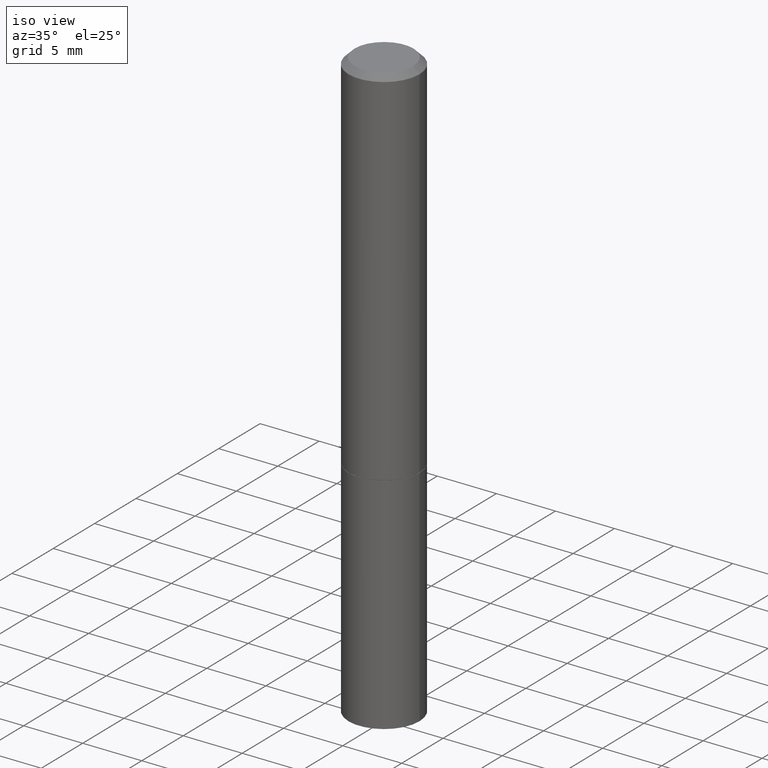
[diagram: clean part render]
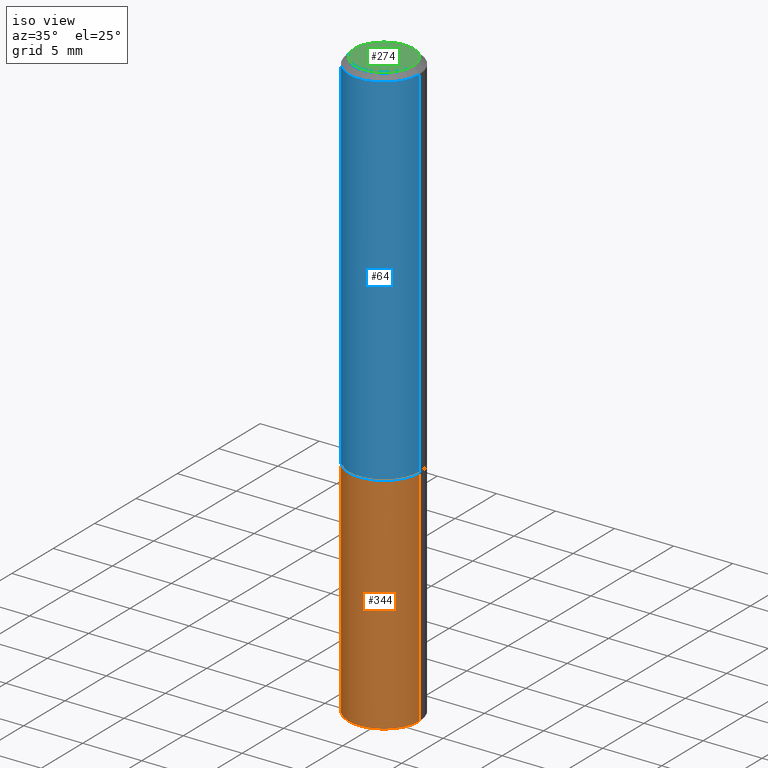
[diagram: same view with three faces highlighted in distinct colors, each labeled with its STEP entity id]
A machine part, iso view with three faces highlighted in distinct colors.
Their STEP definitions:

[orange] entity #344 — the highlighted cylindrical surface (partial cylindrical patch) has radius 2.9997 mm, axis along (-0, 0, 1).
#1 = ORIENTED_EDGE ( 'NONE', *, *, #267, .F. ) ;
#12 = LINE ( 'NONE', #241, #104 ) ;
#16 = DIRECTION ( 'NONE',  ( -2.445468806185136877E-29, 3.491481338843145188E-15, 1.000000000000000000 ) ) ;
#17 = CARTESIAN_POINT ( 'NONE',  ( -0.1180999999999999966, -4.728016023852716776E-15, -1.220499999999999918 ) ) ;
#25 = CARTESIAN_POINT ( 'NONE',  ( 0.1180999999999999966, -7.697668907747479970E-15, -1.968500000000000139 ) ) ;
#27 = CYLINDRICAL_SURFACE ( 'NONE', #230, 0.1180999999999999966 ) ;
#29 = FACE_OUTER_BOUND ( 'NONE', #69, .T. ) ;
#33 = EDGE_CURVE ( 'NONE', #287, #190, #247, .T. ) ;
#46 = ORIENTED_EDGE ( 'NONE', *, *, #254, .F. ) ;
#53 = CARTESIAN_POINT ( 'NONE',  ( 2.984694677948959472E-29, -4.261352974058059028E-15, -1.220499999999999918 ) ) ;
#68 = CARTESIAN_POINT ( 'NONE',  ( 0.1180999999999999966, -5.086040866292807290E-15, -1.220499999999999918 ) ) ;
#69 = EDGE_LOOP ( 'NONE', ( #1, #166, #223, #46 ) ) ;
#71 = DIRECTION ( 'NONE',  ( 1.000000000000000000, -6.982962677686265133E-15, 0.000000000000000000 ) ) ;
#92 = DIRECTION ( 'NONE',  ( -2.445468806185136877E-29, 3.491481338843145188E-15, 1.000000000000000000 ) ) ;
#104 = VECTOR ( 'NONE', #92, 39.37007874015748143 ) ;
#121 = CARTESIAN_POINT ( 'NONE',  ( 0.1180999999999999966, -8.246878922347480654E-16, 5.758764772215000440E-30 ) ) ;
#165 = EDGE_CURVE ( 'NONE', #190, #298, #297, .T. ) ;
#166 = ORIENTED_EDGE ( 'NONE', *, *, #33, .T. ) ;
#171 = CARTESIAN_POINT ( 'NONE',  ( -0.1180999999999999966, -4.728016023852716776E-15, -1.968500000000000139 ) ) ;
#190 = VERTEX_POINT ( 'NONE', #25 ) ;
#192 = DIRECTION ( 'NONE',  ( -2.445468806185136597E-29, 3.491481338843145583E-15, 1.000000000000000000 ) ) ;
#197 = VECTOR ( 'NONE', #16, 39.37007874015748143 ) ;
#211 = CARTESIAN_POINT ( 'NONE',  ( 4.813905344975441835E-29, -6.872981015512731707E-15, -1.968500000000000139 ) ) ;
#223 = ORIENTED_EDGE ( 'NONE', *, *, #165, .T. ) ;
#229 = CARTESIAN_POINT ( 'NONE',  ( 0.000000000000000000, 0.000000000000000000, 0.000000000000000000 ) ) ;
#230 = AXIS2_PLACEMENT_3D ( 'NONE', #229, #192, #284 ) ;
#241 = CARTESIAN_POINT ( 'NONE',  ( -0.1180999999999999966, 8.391509709326782957E-16, -5.809262341591043784E-30 ) ) ;
#247 = CIRCLE ( 'NONE', #305, 0.1180999999999999966 ) ;
#249 = AXIS2_PLACEMENT_3D ( 'NONE', #53, #335, #71 ) ;
#254 = EDGE_CURVE ( 'NONE', #268, #298, #315, .T. ) ;
#267 = EDGE_CURVE ( 'NONE', #287, #268, #12, .T. ) ;
#268 = VERTEX_POINT ( 'NONE', #17 ) ;
#284 = DIRECTION ( 'NONE',  ( 1.000000000000000000, -6.982962677686266711E-15, 4.876176775795936353E-29 ) ) ;
#287 = VERTEX_POINT ( 'NONE', #171 ) ;
#297 = LINE ( 'NONE', #121, #197 ) ;
#298 = VERTEX_POINT ( 'NONE', #68 ) ;
#305 = AXIS2_PLACEMENT_3D ( 'NONE', #211, #352, #329 ) ;
#315 = CIRCLE ( 'NONE', #249, 0.1180999999999999966 ) ;
#329 = DIRECTION ( 'NONE',  ( 1.000000000000000000, -6.982962677686265133E-15, 0.000000000000000000 ) ) ;
#335 = DIRECTION ( 'NONE',  ( -2.445468806185136597E-29, 3.491481338843145583E-15, 1.000000000000000000 ) ) ;
#344 = ADVANCED_FACE ( 'NONE', ( #29 ), #27, .T. ) ;
#352 = DIRECTION ( 'NONE',  ( -2.445468806185136597E-29, 3.491481338843145583E-15, 1.000000000000000000 ) ) ;

[blue] entity #64 — the highlighted cylindrical surface (partial cylindrical patch) has radius 2.9997 mm, axis along (-0, 0, 1).
#6 = AXIS2_PLACEMENT_3D ( 'NONE', #159, #365, #105 ) ;
#32 = ORIENTED_EDGE ( 'NONE', *, *, #193, .F. ) ;
#47 = DIRECTION ( 'NONE',  ( -2.445468806185136877E-29, 3.491481338843145188E-15, 1.000000000000000000 ) ) ;
#62 = ORIENTED_EDGE ( 'NONE', *, *, #309, .T. ) ;
#64 = ADVANCED_FACE ( 'NONE', ( #148 ), #98, .T. ) ;
#65 = EDGE_LOOP ( 'NONE', ( #320, #62, #200, #32 ) ) ;
#67 = LINE ( 'NONE', #102, #285 ) ;
#72 = DIRECTION ( 'NONE',  ( 1.000000000000000000, -6.982962677686266711E-15, 4.876176775795935793E-29 ) ) ;
#73 = CARTESIAN_POINT ( 'NONE',  ( 0.1180999999999999966, -5.082549384953964283E-15, -1.219500000000000028 ) ) ;
#77 = EDGE_CURVE ( 'NONE', #256, #138, #184, .T. ) ;
#84 = AXIS2_PLACEMENT_3D ( 'NONE', #152, #334, #72 ) ;
#98 = CYLINDRICAL_SURFACE ( 'NONE', #84, 0.1180999999999999134 ) ;
#102 = CARTESIAN_POINT ( 'NONE',  ( -0.1180999999999999134, 8.391509709326777040E-16, -5.809262341591039580E-30 ) ) ;
#105 = DIRECTION ( 'NONE',  ( 1.000000000000000000, -6.982962677686266711E-15, 0.000000000000000000 ) ) ;
#113 = VERTEX_POINT ( 'NONE', #187 ) ;
#138 = VERTEX_POINT ( 'NONE', #321 ) ;
#140 = CARTESIAN_POINT ( 'NONE',  ( 2.982249209142773869E-29, -4.257861492719216809E-15, -1.219500000000000028 ) ) ;
#146 = VECTOR ( 'NONE', #188, 39.37007874015748143 ) ;
#148 = FACE_OUTER_BOUND ( 'NONE', #65, .T. ) ;
#152 = CARTESIAN_POINT ( 'NONE',  ( 0.000000000000000000, 0.000000000000000000, 0.000000000000000000 ) ) ;
#159 = CARTESIAN_POINT ( 'NONE',  ( 4.890937612370281041E-31, -6.982962677686302702E-17, -0.02000000000000003511 ) ) ;
#184 = LINE ( 'NONE', #277, #146 ) ;
#187 = CARTESIAN_POINT ( 'NONE',  ( -0.1180999999999998301, 7.548582654578837811E-16, -0.02000000000000003511 ) ) ;
#188 = DIRECTION ( 'NONE',  ( -2.445468806185136877E-29, 3.491481338843145188E-15, 1.000000000000000000 ) ) ;
#193 = EDGE_CURVE ( 'NONE', #113, #138, #220, .T. ) ;
#200 = ORIENTED_EDGE ( 'NONE', *, *, #77, .T. ) ;
#218 = DIRECTION ( 'NONE',  ( -2.445468806185136597E-29, 3.491481338843145583E-15, 1.000000000000000000 ) ) ;
#220 = CIRCLE ( 'NONE', #6, 0.1180999999999998301 ) ;
#232 = EDGE_CURVE ( 'NONE', #266, #113, #67, .T. ) ;
#256 = VERTEX_POINT ( 'NONE', #73 ) ;
#266 = VERTEX_POINT ( 'NONE', #325 ) ;
#277 = CARTESIAN_POINT ( 'NONE',  ( 0.1180999999999999134, -8.246878922347474737E-16, 5.758764772214996237E-30 ) ) ;
#285 = VECTOR ( 'NONE', #47, 39.37007874015748143 ) ;
#288 = CIRCLE ( 'NONE', #341, 0.1180999999999999966 ) ;
#309 = EDGE_CURVE ( 'NONE', #266, #256, #288, .T. ) ;
#310 = DIRECTION ( 'NONE',  ( 1.000000000000000000, -6.982962677686265133E-15, 0.000000000000000000 ) ) ;
#320 = ORIENTED_EDGE ( 'NONE', *, *, #232, .F. ) ;
#321 = CARTESIAN_POINT ( 'NONE',  ( 0.1180999999999998301, -8.800544403136797528E-16, -0.02000000000000003511 ) ) ;
#325 = CARTESIAN_POINT ( 'NONE',  ( -0.1180999999999999966, -1.324694588815359885E-15, -1.219500000000000028 ) ) ;
#334 = DIRECTION ( 'NONE',  ( -2.445468806185136597E-29, 3.491481338843145583E-15, 1.000000000000000000 ) ) ;
#341 = AXIS2_PLACEMENT_3D ( 'NONE', #140, #218, #310 ) ;
#365 = DIRECTION ( 'NONE',  ( -2.445468806185136597E-29, 3.491481338843145583E-15, 1.000000000000000000 ) ) ;

[green] entity #274 — the highlighted planar face has unit normal (0, -0, -1).
#14 = CARTESIAN_POINT ( 'NONE',  ( 6.850286386810215676E-16, 0.09809999999999984011, -3.403800630954618031E-16 ) ) ;
#42 = CARTESIAN_POINT ( 'NONE',  ( 0.09809999999999984011, -7.765346469475328709E-16, 4.268512490105521927E-18 ) ) ;
#58 = VERTEX_POINT ( 'NONE', #42 ) ;
#66 = ORIENTED_EDGE ( 'NONE', *, *, #319, .T. ) ;
#91 = CIRCLE ( 'NONE', #351, 0.09809999999999984011 ) ;
#106 = DIRECTION ( 'NONE',  ( 1.000000000000000000, -6.982962677686266711E-15, 4.876195163481339890E-29 ) ) ;
#112 = EDGE_LOOP ( 'NONE', ( #354, #66 ) ) ;
#124 = DIRECTION ( 'NONE',  ( 2.438088387897960049E-29, -3.491481338843145188E-15, -1.000000000000000000 ) ) ;
#161 = DIRECTION ( 'NONE',  ( -2.445468806185136597E-29, 3.491481338843145583E-15, 1.000000000000000000 ) ) ;
#162 = DIRECTION ( 'NONE',  ( -2.445468806185136597E-29, 3.491481338843145583E-15, 1.000000000000000000 ) ) ;
#195 = EDGE_CURVE ( 'NONE', #296, #58, #91, .T. ) ;
#198 = CARTESIAN_POINT ( 'NONE',  ( -1.043851414335219820E-46, 1.490343170380447200E-32, 4.268512490100411279E-18 ) ) ;
#199 = AXIS2_PLACEMENT_3D ( 'NONE', #198, #162, #340 ) ;
#201 = DIRECTION ( 'NONE',  ( -1.000000000000000000, 6.982962677686265922E-15, -4.876176775795935793E-29 ) ) ;
#210 = FACE_OUTER_BOUND ( 'NONE', #112, .T. ) ;
#221 = CIRCLE ( 'NONE', #199, 0.09809999999999984011 ) ;
#225 = CARTESIAN_POINT ( 'NONE',  ( -1.043851414335219820E-46, 1.490343170380447200E-32, 4.268512490100411279E-18 ) ) ;
#274 = ADVANCED_FACE ( 'NONE', ( #210 ), #353, .F. ) ;
#280 = AXIS2_PLACEMENT_3D ( 'NONE', #14, #124, #201 ) ;
#296 = VERTEX_POINT ( 'NONE', #328 ) ;
#319 = EDGE_CURVE ( 'NONE', #58, #296, #221, .T. ) ;
#328 = CARTESIAN_POINT ( 'NONE',  ( -0.09809999999999984011, 7.199434520694527237E-16, 4.268512490095498617E-18 ) ) ;
#340 = DIRECTION ( 'NONE',  ( 1.000000000000000000, -6.982962677686266711E-15, 4.876195163481339890E-29 ) ) ;
#351 = AXIS2_PLACEMENT_3D ( 'NONE', #225, #161, #106 ) ;
#353 = PLANE ( 'NONE',  #280 ) ;
#354 = ORIENTED_EDGE ( 'NONE', *, *, #195, .T. ) ;